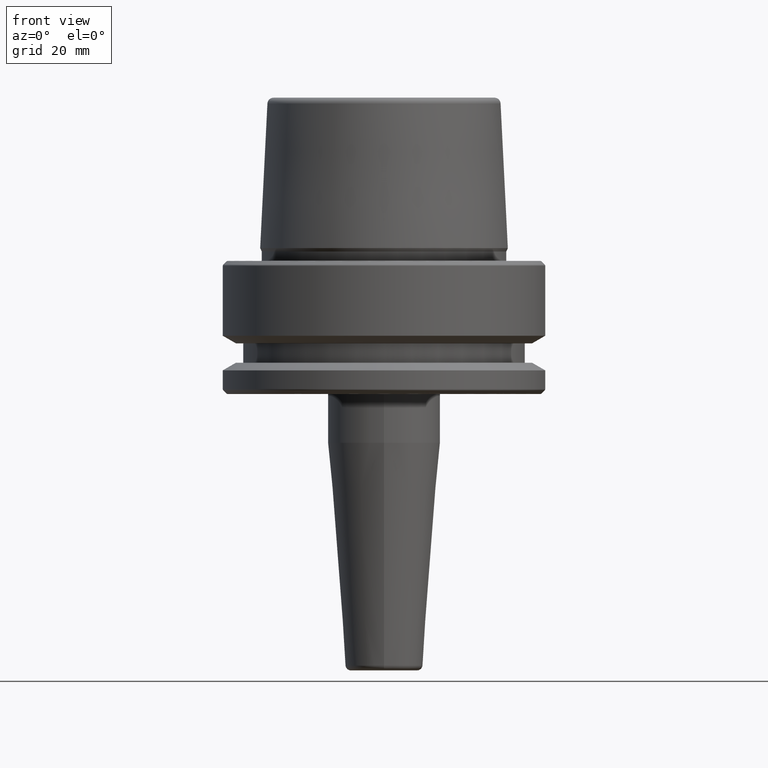
[diagram: clean part render]
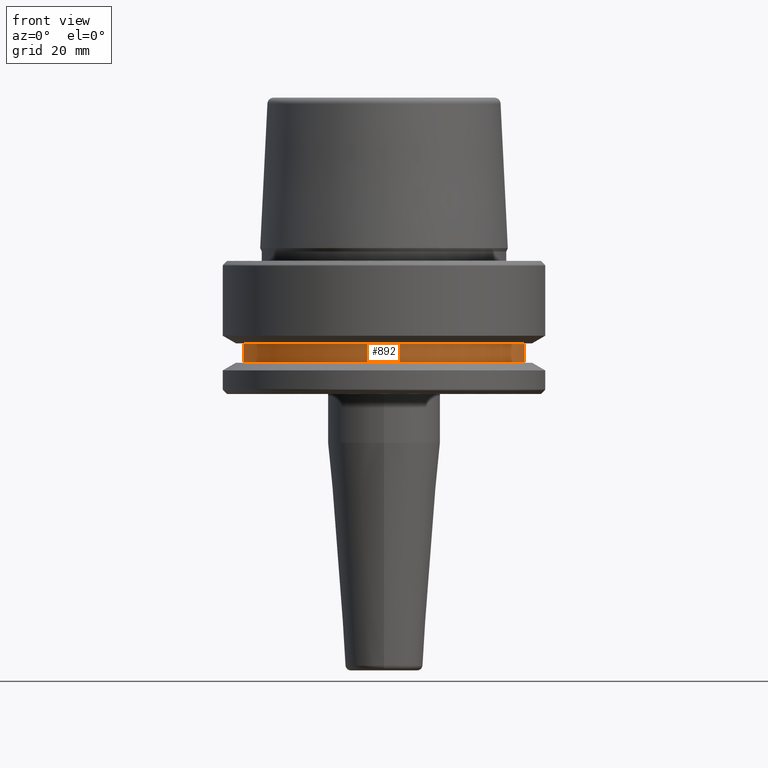
[diagram: same view with one face highlighted and labeled with its STEP entity id]
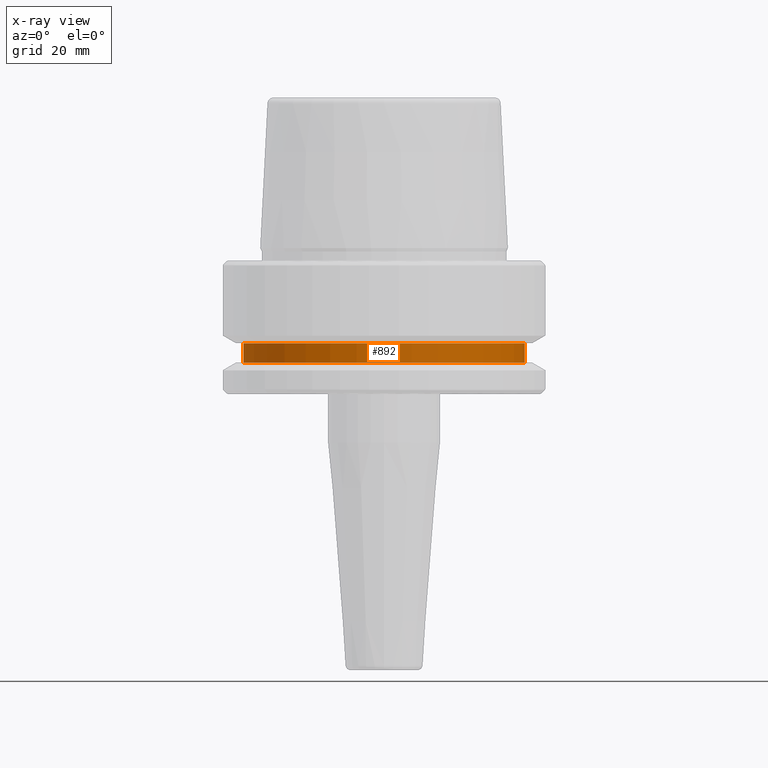
[diagram: x-ray of the same camera — body ghosted, the highlighted face saturated]
A machine part, front view. The second image highlights one B-rep face of the part: STEP entity #892.
The next image is the same camera in x-ray: the body ghosted, the highlighted face saturated — about 0% of this face is hidden behind the body in this view.
In plain terms, the highlighted cylindrical surface (partial cylindrical patch) has radius 27.5 mm, axis along (-0, -0, 1).
Its self-contained STEP definition (entity closure, byte-faithful):
#3 = CIRCLE ( 'NONE', #389, 27.49999999999999600 ) ;
#9 = EDGE_CURVE ( 'NONE', #277, #1186, #547, .T. ) ;
#28 = CARTESIAN_POINT ( 'NONE',  ( 0.0000000000000000000, 0.0000000000000000000, 78.96908074195309300 ) ) ;
#50 = AXIS2_PLACEMENT_3D ( 'NONE', #866, #432, #1002 ) ;
#94 = EDGE_CURVE ( 'NONE', #704, #1186, #935, .T. ) ;
#190 = CARTESIAN_POINT ( 'NONE',  ( -27.49999999999999600, 3.367778697655220900E-015, 78.96908074195309300 ) ) ;
#192 = VERTEX_POINT ( 'NONE', #210 ) ;
#210 = CARTESIAN_POINT ( 'NONE',  ( -27.49999999999999600, 3.367778697655220900E-015, -19.90000000000001600 ) ) ;
#220 = DIRECTION ( 'NONE',  ( 1.000000000000000000, 0.0000000000000000000, 0.0000000000000000000 ) ) ;
#256 = CARTESIAN_POINT ( 'NONE',  ( 27.49999999999999600, 0.0000000000000000000, -19.90000000000001600 ) ) ;
#277 = VERTEX_POINT ( 'NONE', #256 ) ;
#292 = DIRECTION ( 'NONE',  ( -0.0000000000000000000, -0.0000000000000000000, 1.000000000000000000 ) ) ;
#389 = AXIS2_PLACEMENT_3D ( 'NONE', #505, #1179, #600 ) ;
#414 = VECTOR ( 'NONE', #999, 1000.000000000000000 ) ;
#429 = FACE_OUTER_BOUND ( 'NONE', #1250, .T. ) ;
#432 = DIRECTION ( 'NONE',  ( -0.0000000000000000000, -0.0000000000000000000, 1.000000000000000000 ) ) ;
#437 = ORIENTED_EDGE ( 'NONE', *, *, #9, .T. ) ;
#488 = CARTESIAN_POINT ( 'NONE',  ( -27.49999999999999600, 3.367778697655220900E-015, -16.10000000000001600 ) ) ;
#505 = CARTESIAN_POINT ( 'NONE',  ( 0.0000000000000000000, 0.0000000000000000000, -19.90000000000001600 ) ) ;
#510 = DIRECTION ( 'NONE',  ( -0.0000000000000000000, -0.0000000000000000000, 1.000000000000000000 ) ) ;
#547 = LINE ( 'NONE', #1023, #414 ) ;
#555 = ORIENTED_EDGE ( 'NONE', *, *, #94, .F. ) ;
#563 = CARTESIAN_POINT ( 'NONE',  ( 27.49999999999999600, 0.0000000000000000000, -16.10000000000001600 ) ) ;
#600 = DIRECTION ( 'NONE',  ( 1.000000000000000000, 0.0000000000000000000, 0.0000000000000000000 ) ) ;
#674 = EDGE_CURVE ( 'NONE', #192, #704, #1012, .T. ) ;
#704 = VERTEX_POINT ( 'NONE', #488 ) ;
#828 = EDGE_CURVE ( 'NONE', #192, #277, #3, .T. ) ;
#830 = AXIS2_PLACEMENT_3D ( 'NONE', #28, #510, #220 ) ;
#866 = CARTESIAN_POINT ( 'NONE',  ( 0.0000000000000000000, 0.0000000000000000000, -16.10000000000001600 ) ) ;
#876 = CYLINDRICAL_SURFACE ( 'NONE', #830, 27.49999999999999600 ) ;
#892 = ADVANCED_FACE ( 'NONE', ( #429 ), #876, .T. ) ;
#935 = CIRCLE ( 'NONE', #50, 27.49999999999999600 ) ;
#999 = DIRECTION ( 'NONE',  ( -0.0000000000000000000, -0.0000000000000000000, 1.000000000000000000 ) ) ;
#1002 = DIRECTION ( 'NONE',  ( 1.000000000000000000, 0.0000000000000000000, 0.0000000000000000000 ) ) ;
#1012 = LINE ( 'NONE', #190, #1234 ) ;
#1023 = CARTESIAN_POINT ( 'NONE',  ( 27.49999999999999600, 0.0000000000000000000, 78.96908074195309300 ) ) ;
#1047 = ORIENTED_EDGE ( 'NONE', *, *, #674, .F. ) ;
#1144 = ORIENTED_EDGE ( 'NONE', *, *, #828, .T. ) ;
#1179 = DIRECTION ( 'NONE',  ( -0.0000000000000000000, -0.0000000000000000000, 1.000000000000000000 ) ) ;
#1186 = VERTEX_POINT ( 'NONE', #563 ) ;
#1234 = VECTOR ( 'NONE', #292, 1000.000000000000000 ) ;
#1250 = EDGE_LOOP ( 'NONE', ( #1047, #1144, #437, #555 ) ) ;